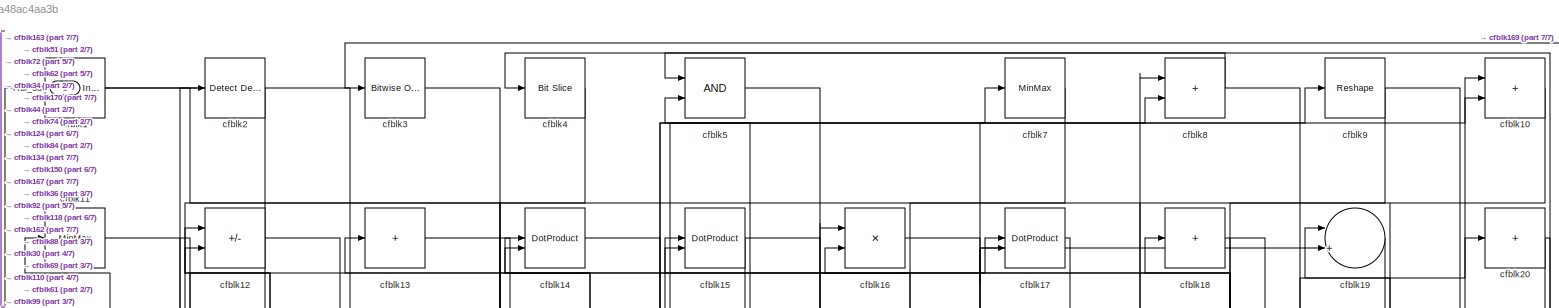
[diagram: root canvas - part 1/7, full width, top band]
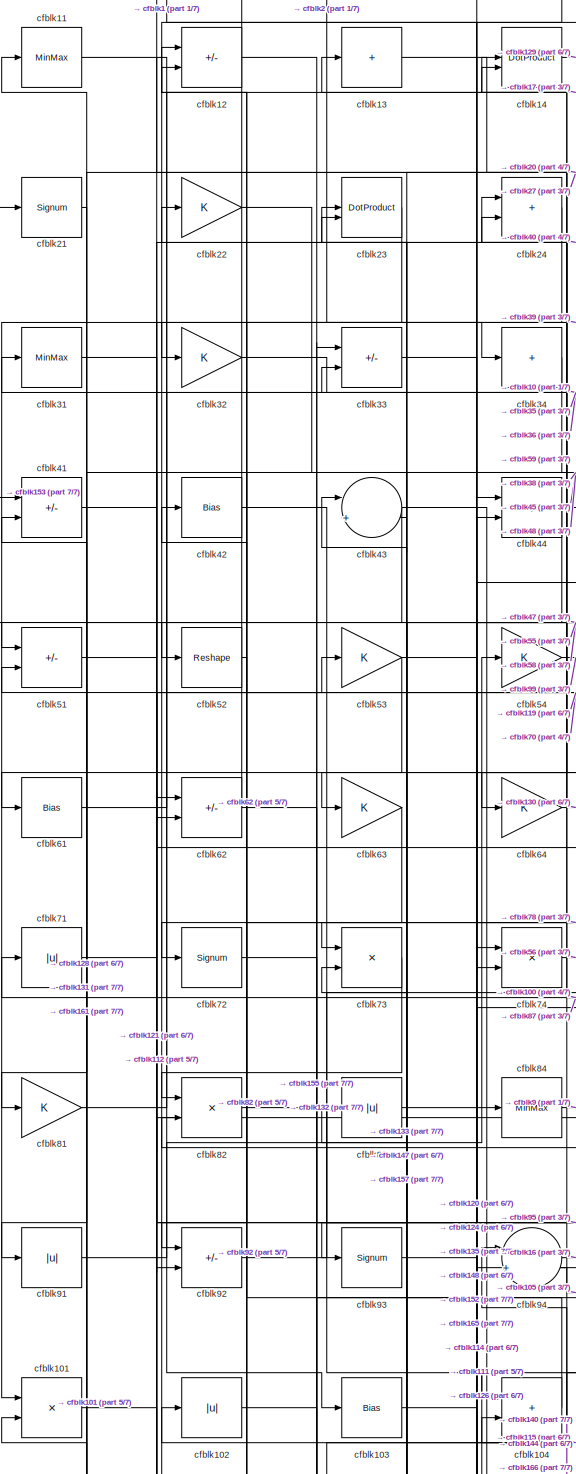
[diagram: root canvas - part 2/7, middle left region]
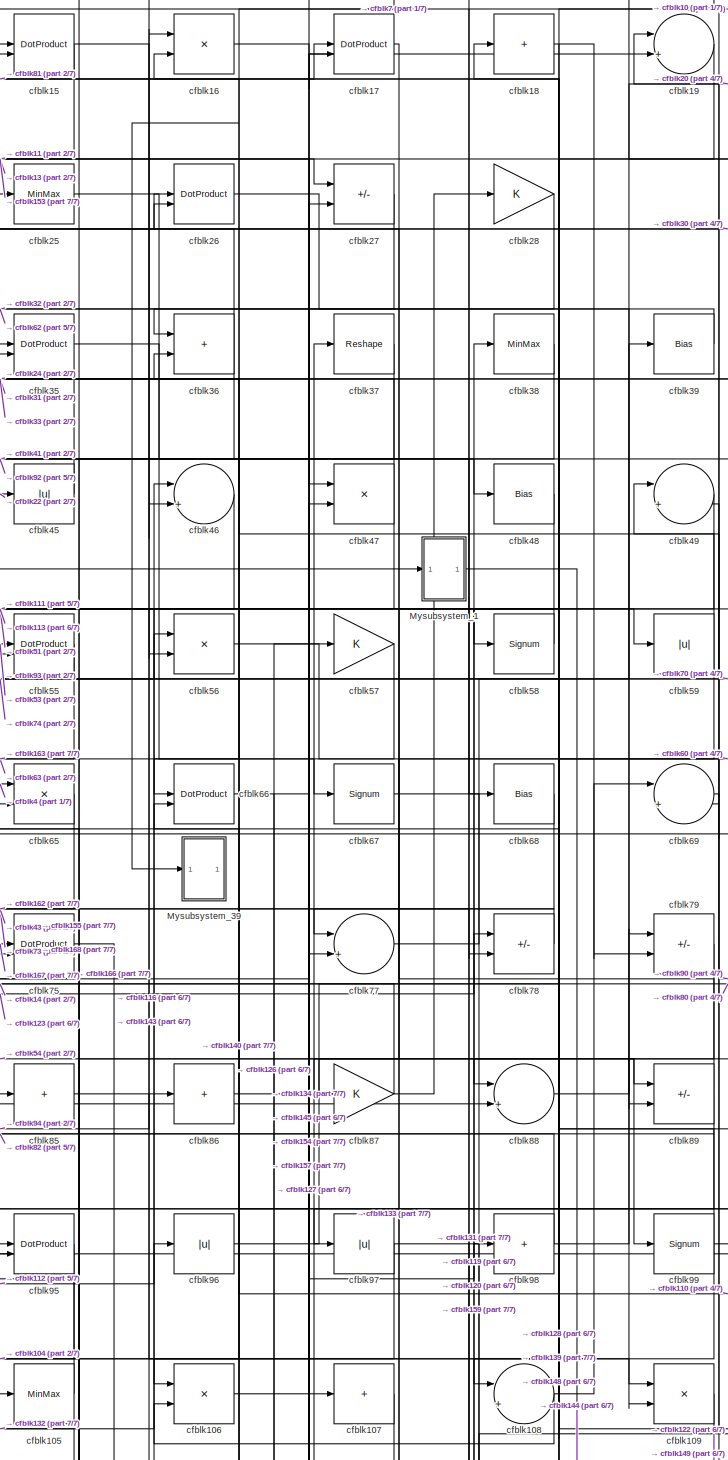
[diagram: root canvas - part 3/7, central region]
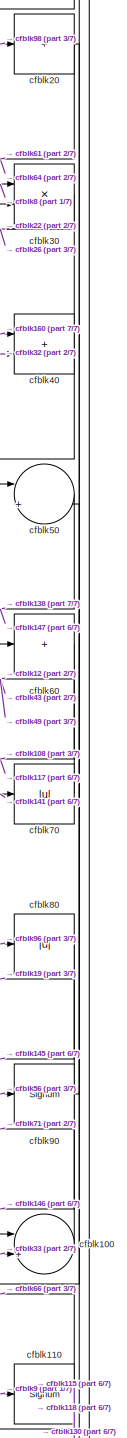
[diagram: root canvas - part 4/7, middle right region]
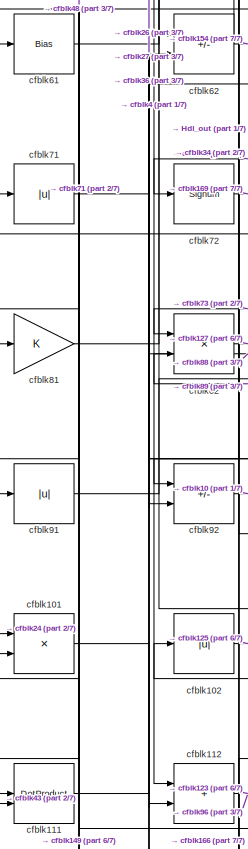
[diagram: root canvas - part 5/7, middle left region]
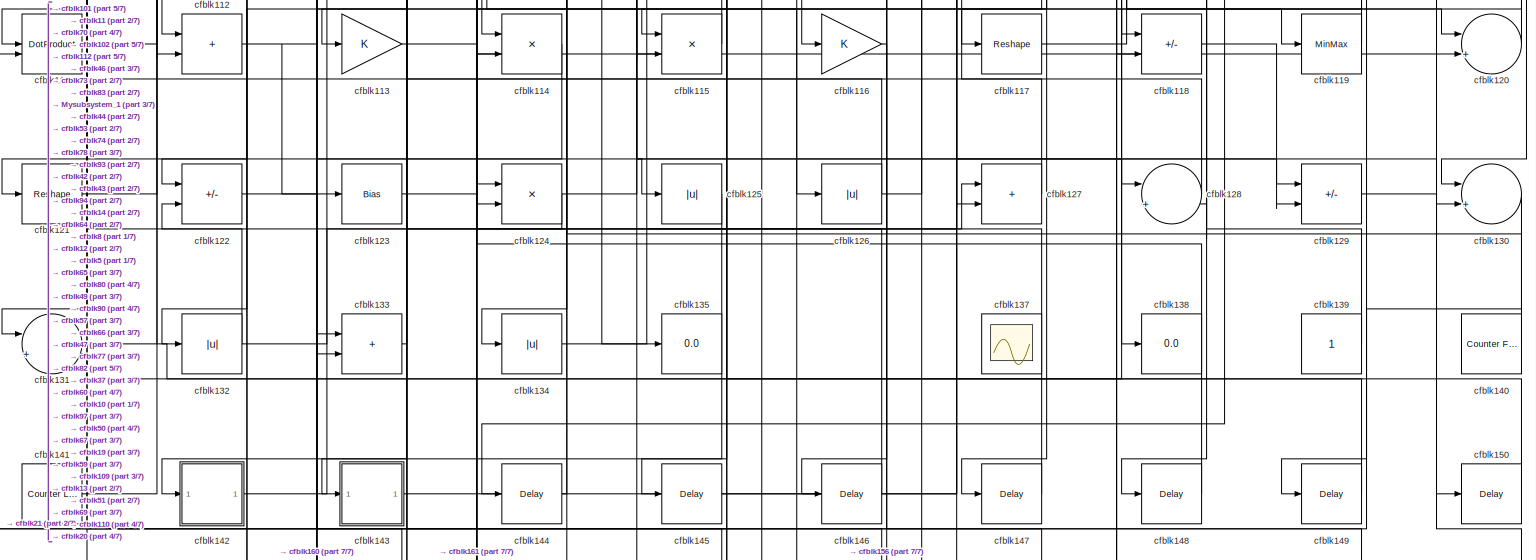
[diagram: root canvas - part 6/7, full width, bottom band]
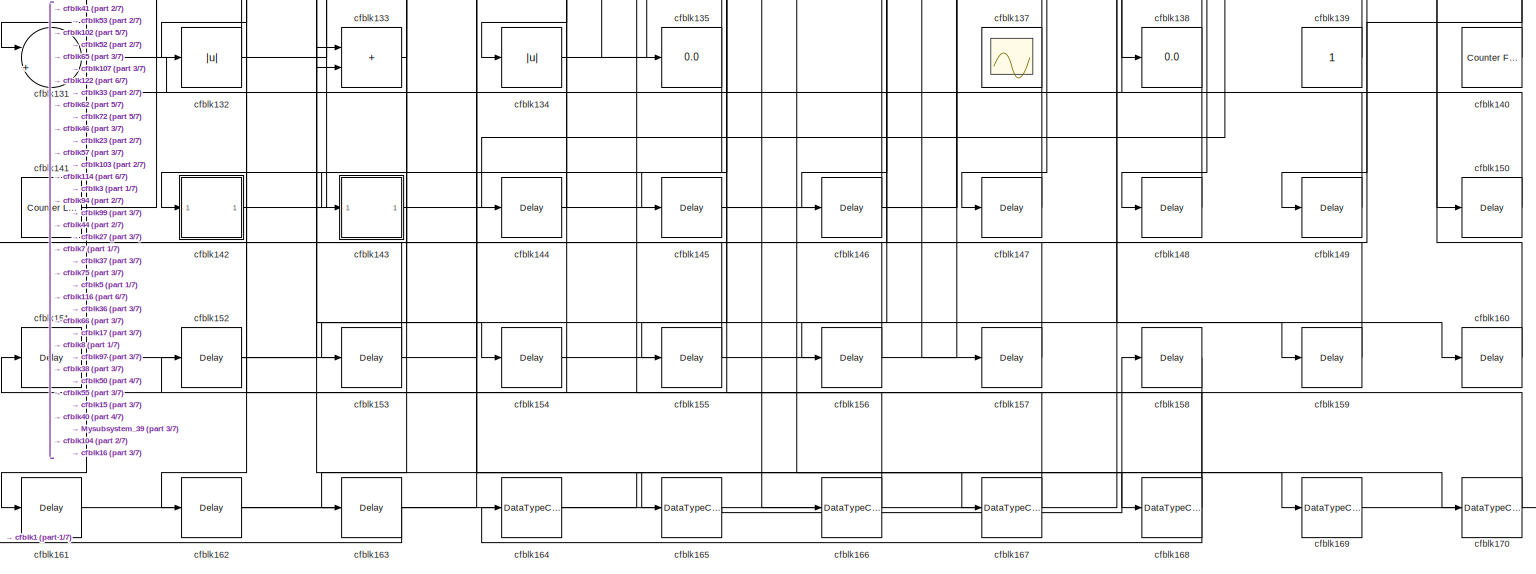
[diagram: root canvas - part 7/7, full width, bottom band]
MODEL slx_67a48ac4aa3b
KIND model
CONFIG AbsTol = auto
CONFIG EnableMultiTasking = off
CONFIG FixedStep = auto
CONFIG MaxStep = auto
CONFIG MinStep = auto
CONFIG RelTol = 1e-3
CONFIG SampleTimeConstraint = Unconstrained
CONFIG SolverName = VariableStepAuto
CONFIG StartTime = 0.0
CONFIG StopTime = 10.0
BLOCK [Outport] Hdl_out
  OutDataTypeStr = uint8
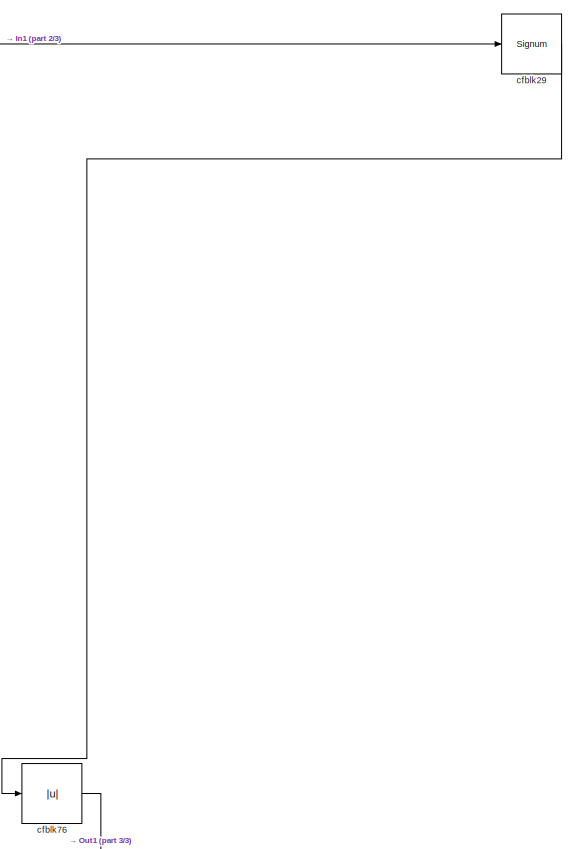
[diagram: Mysubsystem_1 - part 1/3, top right region]
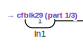
[diagram: Mysubsystem_1 - part 2/3, bottom left region]
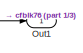
[diagram: Mysubsystem_1 - part 3/3, bottom left region]
BLOCK [SubSystem] Mysubsystem_1
  RTWFcnName = Mysubsystem_1
  RTWFcnNameOpts = User specified
  RTWFileNameOpts = Use function name
  RTWSystemCode = Reusable function
  TreatAsAtomicUnit = on
BLOCK [Inport] Mysubsystem_1/In1
BLOCK [Outport] Mysubsystem_1/Out1
BLOCK [Signum] Mysubsystem_1/cfblk29
BLOCK [Abs] Mysubsystem_1/cfblk76
  SaturateOnIntegerOverflow = off
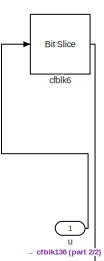
[diagram: Mysubsystem_39 - part 1/2, full width, top band]
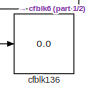
[diagram: Mysubsystem_39 - part 2/2, bottom center region]
BLOCK [SubSystem] Mysubsystem_39
  RTWFcnName = Mysubsystem_39
  RTWFcnNameOpts = User specified
  RTWFileNameOpts = Use function name
  RTWSystemCode = Reusable function
  TreatAsAtomicUnit = on
BLOCK [Display] Mysubsystem_39/cfblk136
  Decimation = 1
BLOCK [Reference] Mysubsystem_39/cfblk6  REF=hdlsllib/Logic and Bit
Operations/Bit Slice
  SourceBlock = hdlsllib/Logic and Bit\nOperations/Bit Slice
  SourceType = Bit Slice
BLOCK [Inport] Mysubsystem_39/u
BLOCK [Reference] cfblk1  REF=simulink/Logic and Bit
Operations/Detect
Increase
  LibrarySourceBlock = hdlsllib/Logic and Bit\nOperations/Detect\nIncrease
  SourceBlock = simulink/Logic and Bit\nOperations/Detect\nIncrease
  SourceType = Detect Increase
BLOCK [Sum] cfblk10
  IconShape = rectangular
  OutDataTypeStr = uint8
BLOCK [Sum] cfblk100
  Inputs = |++
  OutDataTypeStr = uint8
BLOCK [Product] cfblk101
  Inputs = */
  OutDataTypeStr = uint8
  RndMeth = Zero
  SaturateOnIntegerOverflow = on
BLOCK [Abs] cfblk102
  OutDataTypeStr = uint8
  SaturateOnIntegerOverflow = off
BLOCK [Bias] cfblk103
  Bias = 0.0
  SaturateOnIntegerOverflow = off
BLOCK [Sum] cfblk104
  IconShape = rectangular
  OutDataTypeStr = uint8
BLOCK [MinMax] cfblk105
  OutDataTypeStr = uint8
BLOCK [Product] cfblk106
  Inputs = */
  OutDataTypeStr = uint8
  RndMeth = Zero
  SaturateOnIntegerOverflow = on
BLOCK [Sum] cfblk107
  IconShape = rectangular
  Inputs = +
  OutDataTypeStr = uint8
BLOCK [Sum] cfblk108
  Inputs = |++
  OutDataTypeStr = uint8
BLOCK [Product] cfblk109
  Inputs = */
  OutDataTypeStr = uint8
  RndMeth = Zero
  SaturateOnIntegerOverflow = on
BLOCK [MinMax] cfblk11
  OutDataTypeStr = uint8
BLOCK [Signum] cfblk110
BLOCK [DotProduct] cfblk111
  OutDataTypeStr = uint8
BLOCK [Sum] cfblk112
  IconShape = rectangular
  OutDataTypeStr = uint8
BLOCK [Gain] cfblk113
  OutDataTypeStr = uint8
BLOCK [Product] cfblk114
  Inputs = */
  OutDataTypeStr = uint8
  RndMeth = Zero
  SaturateOnIntegerOverflow = on
BLOCK [Product] cfblk115
  Inputs = */
  OutDataTypeStr = uint8
  RndMeth = Zero
  SaturateOnIntegerOverflow = on
BLOCK [Gain] cfblk116
  OutDataTypeStr = uint8
BLOCK [Reshape] cfblk117
BLOCK [Sum] cfblk118
  IconShape = rectangular
  Inputs = +-
  OutDataTypeStr = uint8
BLOCK [MinMax] cfblk119
  OutDataTypeStr = uint8
BLOCK [Sum] cfblk12
  IconShape = rectangular
  Inputs = +-
  OutDataTypeStr = uint8
BLOCK [Sum] cfblk120
  Inputs = |++
  OutDataTypeStr = uint8
BLOCK [Reshape] cfblk121
BLOCK [Sum] cfblk122
  IconShape = rectangular
  Inputs = +-
  OutDataTypeStr = uint8
BLOCK [Bias] cfblk123
  Bias = 0.0
  SaturateOnIntegerOverflow = off
BLOCK [Product] cfblk124
  Inputs = */
  OutDataTypeStr = uint8
  RndMeth = Zero
  SaturateOnIntegerOverflow = on
BLOCK [Abs] cfblk125
  OutDataTypeStr = uint8
  SaturateOnIntegerOverflow = off
BLOCK [Abs] cfblk126
  OutDataTypeStr = uint8
  SaturateOnIntegerOverflow = off
BLOCK [Sum] cfblk127
  IconShape = rectangular
  OutDataTypeStr = uint8
BLOCK [Sum] cfblk128
  Inputs = |++
  OutDataTypeStr = uint8
BLOCK [Sum] cfblk129
  IconShape = rectangular
  Inputs = +-
  OutDataTypeStr = uint8
BLOCK [Sum] cfblk13
  IconShape = rectangular
  Inputs = +
  OutDataTypeStr = uint8
BLOCK [Sum] cfblk130
  Inputs = |++
  OutDataTypeStr = uint8
BLOCK [Sum] cfblk131
  Inputs = |++
  OutDataTypeStr = uint8
BLOCK [Abs] cfblk132
  OutDataTypeStr = uint8
  SaturateOnIntegerOverflow = off
BLOCK [Sum] cfblk133
  IconShape = rectangular
  OutDataTypeStr = uint8
BLOCK [Abs] cfblk134
  OutDataTypeStr = uint8
  SaturateOnIntegerOverflow = off
BLOCK [Display] cfblk135
  Decimation = 1
BLOCK [Scope] cfblk137
  Floating = on
  NumInputPorts = 1
  ScopeSpecificationString = Simulink.scopes.TimeScopeBlockCfg('CurrentConfiguration', extmgr.ConfigurationSet(extmgr.Configuration('Core','General UI',true,'FigureColor',[0.156862745098039 0.156862745098039 0.156862745098039]),extmgr.Configuration('Core','Source UI',true),extmgr.Configuration('Sources','WiredSimulink',true,'DataLoggingVariableName','ScopeData1','DataLoggingSaveFormat','StructureWithTime','DataLoggingLimitDat...<+2713ch>
BLOCK [Display] cfblk138
  Decimation = 1
BLOCK [Constant] cfblk139
  OutDataTypeStr = uint8
  SampleTime = -1
BLOCK [DotProduct] cfblk14
  OutDataTypeStr = uint8
BLOCK [Reference] cfblk140  REF=hdlsllib/Sources/Counter
Free-Running
  SourceBlock = hdlsllib/Sources/Counter\nFree-Running
  SourceType = Counter Free-Running
BLOCK [Reference] cfblk141  REF=hdlsllib/Sources/Counter
Limited
  SourceBlock = hdlsllib/Sources/Counter\nLimited
  SourceType = Counter Limited
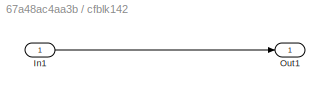
BLOCK [SubSystem] cfblk142
  LibrarySourceBlock = hdlsllib/Ports &\nSubsystems/Subsystem
BLOCK [Inport] cfblk142/In1
BLOCK [Outport] cfblk142/Out1
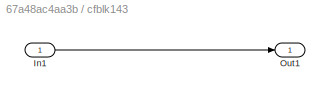
BLOCK [SubSystem] cfblk143
  LibrarySourceBlock = hdlsllib/Ports &\nSubsystems/Subsystem
BLOCK [Inport] cfblk143/In1
BLOCK [Outport] cfblk143/Out1
BLOCK [Delay] cfblk144
  InputPortMap = u0
  SampleTime = 1
BLOCK [Delay] cfblk145
  InputPortMap = u0
  SampleTime = 1
BLOCK [Delay] cfblk146
  InputPortMap = u0
  SampleTime = 1
BLOCK [Delay] cfblk147
  InputPortMap = u0
  SampleTime = 1
BLOCK [Delay] cfblk148
  InputPortMap = u0
  SampleTime = 1
BLOCK [Delay] cfblk149
  InputPortMap = u0
  SampleTime = 1
BLOCK [DotProduct] cfblk15
  OutDataTypeStr = uint8
BLOCK [Delay] cfblk150
  InputPortMap = u0
  SampleTime = 1
BLOCK [Delay] cfblk151
  InputPortMap = u0
  SampleTime = 1
BLOCK [Delay] cfblk152
  InputPortMap = u0
  SampleTime = 1
BLOCK [Delay] cfblk153
  InputPortMap = u0
  SampleTime = 1
BLOCK [Delay] cfblk154
  InputPortMap = u0
  SampleTime = 1
BLOCK [Delay] cfblk155
  InputPortMap = u0
  SampleTime = 1
BLOCK [Delay] cfblk156
  InputPortMap = u0
  SampleTime = 1
BLOCK [Delay] cfblk157
  InputPortMap = u0
  SampleTime = 1
BLOCK [Delay] cfblk158
  InputPortMap = u0
  SampleTime = 1
BLOCK [Delay] cfblk159
  InputPortMap = u0
  SampleTime = 1
BLOCK [Product] cfblk16
  Inputs = */
  OutDataTypeStr = uint8
  RndMeth = Zero
  SaturateOnIntegerOverflow = on
BLOCK [Delay] cfblk160
  InputPortMap = u0
  SampleTime = 1
BLOCK [Delay] cfblk161
  InputPortMap = u0
  SampleTime = 1
BLOCK [Delay] cfblk162
  InputPortMap = u0
  SampleTime = 1
BLOCK [Delay] cfblk163
  InputPortMap = u0
  SampleTime = 1
BLOCK [DataTypeConversion] cfblk164
  OutDataTypeStr = uint8
  RndMeth = Floor
  SaturateOnIntegerOverflow = off
BLOCK [DataTypeConversion] cfblk165
  OutDataTypeStr = uint8
  RndMeth = Floor
  SaturateOnIntegerOverflow = off
BLOCK [DataTypeConversion] cfblk166
  OutDataTypeStr = uint8
  RndMeth = Floor
  SaturateOnIntegerOverflow = off
BLOCK [DataTypeConversion] cfblk167
  OutDataTypeStr = uint8
  RndMeth = Floor
  SaturateOnIntegerOverflow = off
BLOCK [DataTypeConversion] cfblk168
  OutDataTypeStr = uint8
  RndMeth = Floor
  SaturateOnIntegerOverflow = off
BLOCK [DataTypeConversion] cfblk169
  OutDataTypeStr = uint8
  RndMeth = Floor
  SaturateOnIntegerOverflow = off
BLOCK [DotProduct] cfblk17
  OutDataTypeStr = uint8
BLOCK [DataTypeConversion] cfblk170
  OutDataTypeStr = uint8
  RndMeth = Floor
  SaturateOnIntegerOverflow = off
BLOCK [Sum] cfblk18
  IconShape = rectangular
  Inputs = +
  OutDataTypeStr = uint8
BLOCK [Sum] cfblk19
  Inputs = |++
  OutDataTypeStr = uint8
BLOCK [Reference] cfblk2  REF=simulink/Logic and Bit
Operations/Detect
Decrease
  LibrarySourceBlock = hdlsllib/Logic and Bit\nOperations/Detect\nDecrease
  SourceBlock = simulink/Logic and Bit\nOperations/Detect\nDecrease
  SourceType = Detect Decrease
BLOCK [Sum] cfblk20
  IconShape = rectangular
  Inputs = +
  OutDataTypeStr = uint8
BLOCK [Signum] cfblk21
BLOCK [Gain] cfblk22
  OutDataTypeStr = uint8
BLOCK [DotProduct] cfblk23
  OutDataTypeStr = uint8
BLOCK [Sum] cfblk24
  IconShape = rectangular
  OutDataTypeStr = uint8
BLOCK [MinMax] cfblk25
  OutDataTypeStr = uint8
BLOCK [DotProduct] cfblk26
  OutDataTypeStr = uint8
BLOCK [Sum] cfblk27
  IconShape = rectangular
  Inputs = +-
  OutDataTypeStr = uint8
BLOCK [Gain] cfblk28
  OutDataTypeStr = uint8
BLOCK [Reference] cfblk3  REF=simulink/Logic and Bit
Operations/Bitwise
Operator
  LibrarySourceBlock = hdlsllib/Logic and Bit\nOperations/Bitwise\nOperator
  SourceBlock = simulink/Logic and Bit\nOperations/Bitwise\nOperator
  SourceType = Bitwise Operator
BLOCK [Product] cfblk30
  Inputs = */
  OutDataTypeStr = uint8
  RndMeth = Zero
  SaturateOnIntegerOverflow = on
BLOCK [MinMax] cfblk31
  OutDataTypeStr = uint8
BLOCK [Gain] cfblk32
  OutDataTypeStr = uint8
BLOCK [Sum] cfblk33
  IconShape = rectangular
  Inputs = +-
  OutDataTypeStr = uint8
BLOCK [Sum] cfblk34
  IconShape = rectangular
  Inputs = +
  OutDataTypeStr = uint8
BLOCK [DotProduct] cfblk35
  OutDataTypeStr = uint8
BLOCK [Sum] cfblk36
  IconShape = rectangular
  OutDataTypeStr = uint8
BLOCK [Reshape] cfblk37
BLOCK [MinMax] cfblk38
  OutDataTypeStr = uint8
BLOCK [Bias] cfblk39
  Bias = 0.0
  SaturateOnIntegerOverflow = off
BLOCK [Reference] cfblk4  REF=hdlsllib/Logic and Bit
Operations/Bit Slice
  SourceBlock = hdlsllib/Logic and Bit\nOperations/Bit Slice
  SourceType = Bit Slice
BLOCK [Sum] cfblk40
  IconShape = rectangular
  OutDataTypeStr = uint8
BLOCK [Sum] cfblk41
  IconShape = rectangular
  Inputs = +-
  OutDataTypeStr = uint8
BLOCK [Bias] cfblk42
  Bias = 0.0
  SaturateOnIntegerOverflow = off
BLOCK [Sum] cfblk43
  Inputs = |++
  OutDataTypeStr = uint8
BLOCK [Sum] cfblk44
  IconShape = rectangular
  Inputs = +-
  OutDataTypeStr = uint8
BLOCK [Abs] cfblk45
  OutDataTypeStr = uint8
  SaturateOnIntegerOverflow = off
BLOCK [Sum] cfblk46
  Inputs = |++
  OutDataTypeStr = uint8
BLOCK [Product] cfblk47
  Inputs = */
  OutDataTypeStr = uint8
  RndMeth = Zero
  SaturateOnIntegerOverflow = on
BLOCK [Bias] cfblk48
  Bias = 0.0
  SaturateOnIntegerOverflow = off
BLOCK [Sum] cfblk49
  Inputs = |++
  OutDataTypeStr = uint8
BLOCK [Logic] cfblk5
  AllPortsSameDT = off
  OutDataTypeStr = boolean
BLOCK [Sum] cfblk50
  Inputs = |++
  OutDataTypeStr = uint8
BLOCK [Sum] cfblk51
  IconShape = rectangular
  Inputs = +-
  OutDataTypeStr = uint8
BLOCK [Reshape] cfblk52
BLOCK [Gain] cfblk53
  OutDataTypeStr = uint8
BLOCK [Gain] cfblk54
  OutDataTypeStr = uint8
BLOCK [DotProduct] cfblk55
  OutDataTypeStr = uint8
BLOCK [Product] cfblk56
  Inputs = */
  OutDataTypeStr = uint8
  RndMeth = Zero
  SaturateOnIntegerOverflow = on
BLOCK [Gain] cfblk57
  OutDataTypeStr = uint8
BLOCK [Signum] cfblk58
BLOCK [Abs] cfblk59
  OutDataTypeStr = uint8
  SaturateOnIntegerOverflow = off
BLOCK [Sum] cfblk60
  IconShape = rectangular
  Inputs = +
  OutDataTypeStr = uint8
BLOCK [Bias] cfblk61
  Bias = 0.0
  SaturateOnIntegerOverflow = off
BLOCK [Sum] cfblk62
  IconShape = rectangular
  Inputs = +-
  OutDataTypeStr = uint8
BLOCK [Gain] cfblk63
  OutDataTypeStr = uint8
BLOCK [Gain] cfblk64
  OutDataTypeStr = uint8
BLOCK [Product] cfblk65
  Inputs = */
  OutDataTypeStr = uint8
  RndMeth = Zero
  SaturateOnIntegerOverflow = on
BLOCK [DotProduct] cfblk66
  OutDataTypeStr = uint8
BLOCK [Signum] cfblk67
BLOCK [Bias] cfblk68
  Bias = 0.0
  SaturateOnIntegerOverflow = off
BLOCK [Sum] cfblk69
  Inputs = |++
  OutDataTypeStr = uint8
BLOCK [MinMax] cfblk7
  OutDataTypeStr = uint8
BLOCK [Abs] cfblk70
  OutDataTypeStr = uint8
  SaturateOnIntegerOverflow = off
BLOCK [Abs] cfblk71
  OutDataTypeStr = uint8
  SaturateOnIntegerOverflow = off
BLOCK [Signum] cfblk72
BLOCK [Product] cfblk73
  Inputs = */
  OutDataTypeStr = uint8
  RndMeth = Zero
  SaturateOnIntegerOverflow = on
BLOCK [Product] cfblk74
  Inputs = */
  OutDataTypeStr = uint8
  RndMeth = Zero
  SaturateOnIntegerOverflow = on
BLOCK [DotProduct] cfblk75
  OutDataTypeStr = uint8
BLOCK [Sum] cfblk77
  Inputs = |++
  OutDataTypeStr = uint8
BLOCK [Sum] cfblk78
  IconShape = rectangular
  Inputs = +-
  OutDataTypeStr = uint8
BLOCK [Sum] cfblk79
  IconShape = rectangular
  Inputs = +-
  OutDataTypeStr = uint8
BLOCK [Sum] cfblk8
  IconShape = rectangular
  OutDataTypeStr = uint8
BLOCK [Abs] cfblk80
  OutDataTypeStr = uint8
  SaturateOnIntegerOverflow = off
BLOCK [Gain] cfblk81
  OutDataTypeStr = uint8
BLOCK [Product] cfblk82
  Inputs = */
  OutDataTypeStr = uint8
  RndMeth = Zero
  SaturateOnIntegerOverflow = on
BLOCK [Abs] cfblk83
  OutDataTypeStr = uint8
  SaturateOnIntegerOverflow = off
BLOCK [MinMax] cfblk84
  OutDataTypeStr = uint8
BLOCK [Sum] cfblk85
  IconShape = rectangular
  Inputs = +
  OutDataTypeStr = uint8
BLOCK [Sum] cfblk86
  IconShape = rectangular
  Inputs = +
  OutDataTypeStr = uint8
BLOCK [Gain] cfblk87
  OutDataTypeStr = uint8
BLOCK [Sum] cfblk88
  Inputs = |++
  OutDataTypeStr = uint8
BLOCK [Sum] cfblk89
  IconShape = rectangular
  Inputs = +-
  OutDataTypeStr = uint8
BLOCK [Reshape] cfblk9
BLOCK [Signum] cfblk90
BLOCK [Abs] cfblk91
  OutDataTypeStr = uint8
  SaturateOnIntegerOverflow = off
BLOCK [Sum] cfblk92
  IconShape = rectangular
  Inputs = +-
  OutDataTypeStr = uint8
BLOCK [Signum] cfblk93
BLOCK [Sum] cfblk94
  Inputs = |++
  OutDataTypeStr = uint8
BLOCK [DotProduct] cfblk95
  OutDataTypeStr = uint8
BLOCK [Abs] cfblk96
  OutDataTypeStr = uint8
  SaturateOnIntegerOverflow = off
BLOCK [Abs] cfblk97
  OutDataTypeStr = uint8
  SaturateOnIntegerOverflow = off
BLOCK [Sum] cfblk98
  IconShape = rectangular
  Inputs = +
  OutDataTypeStr = uint8
BLOCK [Signum] cfblk99
LINE Mysubsystem_1/In1:1 -> Mysubsystem_1/cfblk29:1
LINE Mysubsystem_1/cfblk29:1 -> Mysubsystem_1/cfblk76:1
LINE Mysubsystem_1/cfblk76:1 -> Mysubsystem_1/Out1:1
LINE Mysubsystem_1:1 -> cfblk144:1
LINE Mysubsystem_39/cfblk6:1 -> Mysubsystem_39/cfblk136:1
LINE Mysubsystem_39/u:1 -> Mysubsystem_39/cfblk6:1
LINE cfblk100:1 -> cfblk71:1
LINE cfblk101:1 -> cfblk112:2
LINE cfblk102:1 -> cfblk125:1
LINE cfblk103:1 -> cfblk165:1
LINE cfblk104:1 -> cfblk42:1
LINE cfblk105:1 -> cfblk14:2
LINE cfblk106:1 -> cfblk98:1
LINE cfblk107:1 -> cfblk133:2
NET cfblk108:1 -> cfblk106:2, cfblk18:1, cfblk69:1
LINE cfblk109:1 -> cfblk122:1
NET cfblk10:1 -> cfblk118:2, cfblk69:2, cfblk74:2
NET cfblk110:1 -> cfblk115:1, cfblk118:1, cfblk66:2
NET cfblk111:1 -> cfblk26:1, cfblk88:2
NET cfblk112:1 -> cfblk123:1, cfblk96:1
LINE cfblk113:1 -> Mysubsystem_1:1
LINE cfblk114:1 -> cfblk121:1
LINE cfblk115:1 -> cfblk12:2
LINE cfblk116:1 -> cfblk156:1
LINE cfblk117:1 -> cfblk50:1
LINE cfblk118:1 -> cfblk129:1
NET cfblk119:1 -> cfblk13:1, cfblk51:2
NET cfblk11:1 -> cfblk103:1, cfblk27:1
LINE cfblk120:1 -> cfblk49:1
LINE cfblk121:1 -> cfblk53:1
LINE cfblk122:1 -> cfblk160:1
LINE cfblk123:1 -> cfblk78:1
NET cfblk124:1 -> cfblk122:2, cfblk8:2
LINE cfblk125:1 -> cfblk142:1
NET cfblk126:1 -> cfblk57:1, cfblk65:2, cfblk83:1
LINE cfblk127:1 -> cfblk37:1
LINE cfblk128:1 -> cfblk11:1
LINE cfblk129:1 -> cfblk150:1
LINE cfblk12:1 -> cfblk100:1
LINE cfblk130:1 -> cfblk21:1
NET cfblk131:1 -> cfblk38:1, cfblk55:2
NET cfblk132:1 -> cfblk41:2, cfblk46:1
LINE cfblk133:1 -> cfblk23:1
NET cfblk134:1 -> cfblk27:2, cfblk7:1
LINE cfblk139:1 -> cfblk15:1
NET cfblk13:1 -> cfblk47:1, cfblk56:2
NET cfblk140:1 -> Mysubsystem_39:1, cfblk104:2, cfblk16:2
NET cfblk141:1 -> cfblk60:1, cfblk70:1
LINE cfblk142/In1:1 -> cfblk142/Out1:1
LINE cfblk142:1 -> cfblk127:1
LINE cfblk143/In1:1 -> cfblk143/Out1:1
LINE cfblk143:1 -> cfblk47:2
LINE cfblk144:1 -> cfblk94:2
LINE cfblk145:1 -> cfblk77:2
LINE cfblk146:1 -> cfblk124:1
LINE cfblk147:1 -> cfblk73:2
LINE cfblk148:1 -> cfblk74:1
LINE cfblk149:1 -> cfblk101:2
LINE cfblk14:1 -> cfblk129:2
LINE cfblk150:1 -> cfblk5:2
LINE cfblk151:1 -> cfblk133:1
LINE cfblk152:1 -> cfblk44:2
LINE cfblk153:1 -> cfblk41:1
LINE cfblk154:1 -> cfblk17:2
LINE cfblk155:1 -> cfblk33:1
LINE cfblk156:1 -> cfblk131:2
LINE cfblk157:1 -> cfblk23:2
LINE cfblk158:1 -> cfblk164:1
LINE cfblk159:1 -> cfblk36:2
NET cfblk15:1 -> cfblk153:1, cfblk46:2
LINE cfblk160:1 -> cfblk40:1
LINE cfblk161:1 -> cfblk114:2
LINE cfblk162:1 -> cfblk8:1
LINE cfblk163:1 -> cfblk1:1
LINE cfblk164:1 -> cfblk168:1
LINE cfblk165:1 -> cfblk158:1
NET cfblk166:1 -> cfblk102:1, cfblk94:1
LINE cfblk167:1 -> cfblk75:1
LINE cfblk168:1 -> cfblk75:2
LINE cfblk169:1 -> cfblk3:1
NET cfblk16:1 -> cfblk107:1, cfblk19:2
NET cfblk170:1 -> cfblk151:1, cfblk152:1
LINE cfblk17:1 -> cfblk77:1
NET cfblk18:1 -> cfblk58:1, cfblk79:2
LINE cfblk19:1 -> cfblk148:1
LINE cfblk1:1 -> cfblk44:1
NET cfblk20:1 -> cfblk130:1, cfblk61:1, cfblk64:1
LINE cfblk21:1 -> cfblk91:1
LINE cfblk22:1 -> cfblk45:1
LINE cfblk23:1 -> cfblk52:1
LINE cfblk24:1 -> cfblk101:1
LINE cfblk25:1 -> cfblk67:1
LINE cfblk26:1 -> cfblk109:1
LINE cfblk27:1 -> cfblk62:2
LINE cfblk28:1 -> cfblk66:1
LINE cfblk2:1 -> cfblk34:1
LINE cfblk30:1 -> cfblk26:2
NET cfblk31:1 -> cfblk35:2, cfblk95:1
LINE cfblk32:1 -> cfblk40:2
NET cfblk33:1 -> cfblk100:2, cfblk59:1
LINE cfblk34:1 -> cfblk82:1
LINE cfblk35:1 -> cfblk68:1
NET cfblk36:1 -> cfblk15:2, cfblk33:2, cfblk92:2
LINE cfblk37:1 -> cfblk155:1
NET cfblk38:1 -> cfblk106:1, cfblk81:1
LINE cfblk39:1 -> cfblk32:1
LINE cfblk3:1 -> cfblk170:1
NET cfblk40:1 -> cfblk22:1, cfblk43:2
NET cfblk41:1 -> cfblk131:1, cfblk48:1, cfblk95:2
LINE cfblk42:1 -> cfblk114:1
NET cfblk43:1 -> cfblk111:2, cfblk126:1, cfblk78:2
NET cfblk44:1 -> cfblk124:2, cfblk135:1
LINE cfblk45:1 -> cfblk24:2
LINE cfblk46:1 -> cfblk113:1
NET cfblk47:1 -> cfblk35:1, cfblk93:1
LINE cfblk48:1 -> cfblk111:1
NET cfblk49:1 -> cfblk116:1, cfblk143:1
LINE cfblk4:1 -> cfblk72:1
NET cfblk50:1 -> cfblk138:1, cfblk147:1
LINE cfblk51:1 -> cfblk2:1
LINE cfblk52:1 -> cfblk132:1
NET cfblk53:1 -> cfblk120:2, cfblk161:1, cfblk55:1
LINE cfblk54:1 -> cfblk99:1
LINE cfblk55:1 -> cfblk63:1
LINE cfblk56:1 -> cfblk90:1
LINE cfblk57:1 -> cfblk163:1
LINE cfblk58:1 -> cfblk51:1
NET cfblk59:1 -> cfblk108:1, cfblk128:2, cfblk31:1
LINE cfblk5:1 -> cfblk167:1
NET cfblk60:1 -> cfblk108:2, cfblk117:1
LINE cfblk61:1 -> cfblk10:2
NET cfblk62:1 -> Hdl_out:1, cfblk154:1
LINE cfblk63:1 -> cfblk112:1
NET cfblk64:1 -> cfblk130:2, cfblk24:1
LINE cfblk65:1 -> cfblk162:1
NET cfblk66:1 -> cfblk128:1, cfblk157:1
LINE cfblk67:1 -> cfblk119:1
LINE cfblk68:1 -> cfblk87:1
LINE cfblk69:1 -> cfblk149:1
NET cfblk70:1 -> cfblk12:1, cfblk43:1, cfblk49:2
LINE cfblk71:1 -> cfblk62:1
LINE cfblk72:1 -> cfblk169:1
LINE cfblk73:1 -> cfblk92:1
LINE cfblk74:1 -> cfblk56:1
LINE cfblk75:1 -> cfblk166:1
LINE cfblk77:1 -> cfblk39:1
LINE cfblk78:1 -> cfblk73:1
LINE cfblk79:1 -> cfblk89:2
LINE cfblk7:1 -> cfblk36:1
LINE cfblk80:1 -> cfblk145:1
LINE cfblk81:1 -> cfblk17:1
LINE cfblk82:1 -> cfblk127:2
LINE cfblk83:1 -> cfblk54:1
LINE cfblk84:1 -> cfblk9:1
NET cfblk85:1 -> cfblk109:2, cfblk86:1
LINE cfblk86:1 -> cfblk89:1
NET cfblk87:1 -> cfblk14:1, cfblk28:1
LINE cfblk88:1 -> cfblk79:1
NET cfblk89:1 -> cfblk25:1, cfblk82:2, cfblk97:1
NET cfblk8:1 -> cfblk30:1, cfblk30:2, cfblk5:1
NET cfblk90:1 -> cfblk146:1, cfblk19:1, cfblk50:2
LINE cfblk91:1 -> cfblk84:1
LINE cfblk92:1 -> cfblk10:1
LINE cfblk93:1 -> cfblk115:2
LINE cfblk94:1 -> cfblk16:1
LINE cfblk95:1 -> cfblk104:1
LINE cfblk96:1 -> cfblk80:1
NET cfblk97:1 -> cfblk105:1, cfblk120:1, cfblk159:1
NET cfblk98:1 -> cfblk20:1, cfblk85:1
NET cfblk99:1 -> cfblk134:1, cfblk4:1, cfblk65:1
NET cfblk9:1 -> cfblk110:1, cfblk88:1
note: NET lines group one-source signal fan-out (src -> all destinations, sorted); 1:1 wires keep LINE
